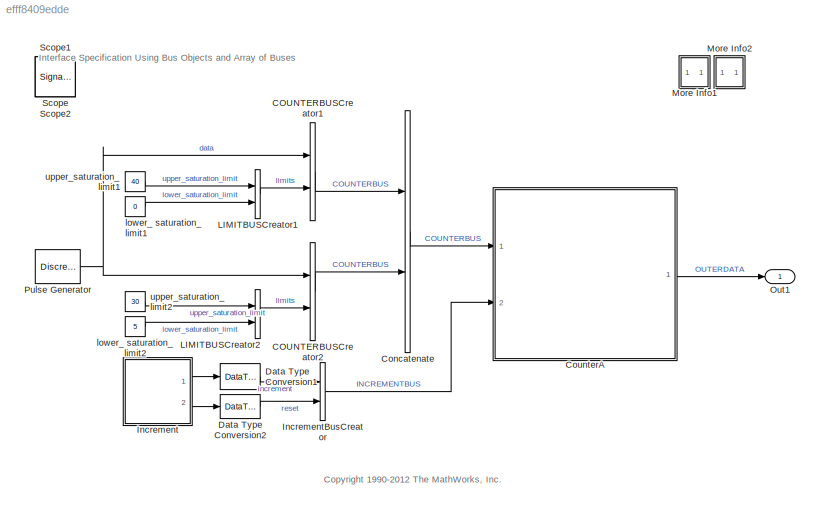
MODEL slx_efff8409edde
KIND model
CONFIG PreLoadFcn = load sldemo_mdlref_counter_bus.mat
BLOCK [BusCreator] COUNTERBUSCreator1
  DisplayOption = bar
  Inputs = 2
  NonVirtualBus = on
  OutDataTypeStr = Bus: COUNTERBUS
  Ports = [2, 1]
BLOCK [BusCreator] COUNTERBUSCreator2
  DisplayOption = bar
  Inputs = 2
  NonVirtualBus = on
  OutDataTypeStr = Bus: COUNTERBUS
  Ports = [2, 1]
BLOCK [Concatenate] Concatenate
  Mode = Multidimensional array
  Ports = [2, 1]
BLOCK [ModelReference] CounterA
  CopyOfModelName = mdlref_counter_bus_qnx.slx
  DefaultDataLogging = on
  ModelNameDialog = mdlref_counter_bus_qnx.slx
  ModelReferenceVersion = 1.259
  Ports = [2, 1]
BLOCK [DataTypeConversion] Data Type Conversion1
  OutDataTypeStr = int32
  RndMeth = Floor
  SaturateOnIntegerOverflow = off
BLOCK [DataTypeConversion] Data Type Conversion2
  OutDataTypeStr = boolean
  RndMeth = Floor
  SaturateOnIntegerOverflow = off
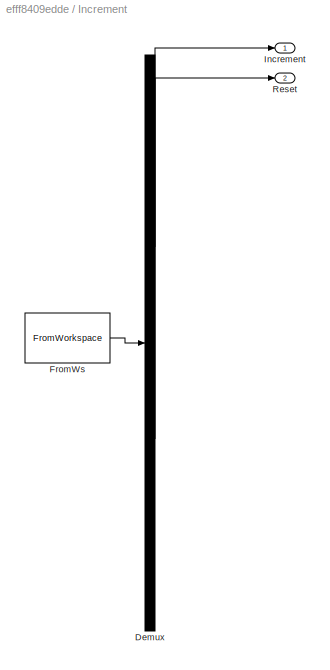
BLOCK [SubSystem] Increment
  ClipboardFcn = sigbuilder_block('clipboard');
  CloseFcn = sigbuilder_block('close');
  ContinueFcn = sigbuilder_block('continue')
  CopyFcn = sigbuilder_block('copy');
  DeleteFcn = sigbuilder_block('delete');
  FunctionWithSeparateData = off
  LoadFcn = sigbuilder_block('load');
  MaskHideContents = on
  MinAlgLoopOccurrences = off
  ModelCloseFcn = sigbuilder_block('modelClose');
  NameChangeFcn = sigbuilder_block('namechange');
  Opaque = off
  OpenFcn = sigbuilder_block('open',[3.2 253.6 1076.8 584 ]);
  PauseFcn = sigbuilder_block('pause')
  Ports = [0, 2]
  PreSaveFcn = sigbuilder_block('preSave');
  PropExecContextOutsideSubsystem = off
  RTWSystemCode = Auto
  RequestExecContextInheritance = off
  StartFcn = sigbuilder_block('start');
  StopFcn = sigbuilder_block('stop');
  Tag = STV Subsys
BLOCK [Demux] Increment/Demux
  Outputs = 2
  Ports = [1, 2]
  Tag = STV Demux
BLOCK [FromWorkspace] Increment/FromWs
  OutputAfterFinalValue = Holding final value
  SampleTime = 0.1
  Tag = STV FromWs
  VariableName = tuvar
  ZeroCross = on
BLOCK [Outport] Increment/Increment
  IconDisplay = Port number
  Tag = STV Outport
BLOCK [Outport] Increment/Reset
  IconDisplay = Port number
  Port = 2
  Tag = STV Outport
BLOCK [BusCreator] IncrementBusCreator
  DisplayOption = bar
  Inputs = 2
  NonVirtualBus = on
  OutDataTypeStr = Bus: INCREMENTBUS
  Ports = [2, 1]
BLOCK [BusCreator] LIMITBUSCreator1
  DisplayOption = bar
  Inputs = 2
  NonVirtualBus = on
  OutDataTypeStr = Bus: LIMITBUS
  Ports = [2, 1]
BLOCK [BusCreator] LIMITBUSCreator2
  DisplayOption = bar
  Inputs = 2
  NonVirtualBus = on
  OutDataTypeStr = Bus: LIMITBUS
  Ports = [2, 1]
BLOCK [SubSystem] More Info1
  FunctionWithSeparateData = off
  MaskHideContents = off
  MinAlgLoopOccurrences = off
  Opaque = off
  OpenFcn = showdemo(bdroot(gcb))
  Ports = []
  PropExecContextOutsideSubsystem = off
  RTWSystemCode = Auto
  RequestExecContextInheritance = off
BLOCK [SubSystem] More Info2
  FunctionWithSeparateData = off
  MaskHideContents = off
  MinAlgLoopOccurrences = off
  Opaque = off
  OpenFcn = html = fullfile(matlabroot, 'toolbox', 'simulink', 'simdemos', 'simfeatures', 'html', 'sldemo_mdlref_protect.html');\n                                                                                                                    \nif(isempty(dir(html)))                                                                                              \n   error('simdemos:sldemo_mdlref_bus:notFound','"...<+305ch>
  Ports = []
  PropExecContextOutsideSubsystem = off
  RTWSystemCode = Auto
  RequestExecContextInheritance = off
BLOCK [Outport] Out1
  IconDisplay = Port number
BLOCK [DiscretePulseGenerator] Pulse Generator
  Amplitude = int32(1)
  Ports = [0, 1]
  SampleTime = 0.1
BLOCK [SignalViewerScope] Scope
  IOType = viewer
  MaxDataPoints = 7500
  NumInputPorts = 1
  Ports = []
  RefreshTime = 0.035000
  ShowDataMarkers = off
  ShowLegends = on
  TickLabels = on
  TimeRange = 30
  YMax = 45
BLOCK [SignalViewerScope] Scope1
  IOType = viewer
  MaxDataPoints = 7500
  NumInputPorts = 1
  Ports = []
  RefreshTime = 0.035000
  SaveName = ScopeData1
  ShowDataMarkers = off
  ShowLegends = off
  YMax = 45
BLOCK [SignalViewerScope] Scope2
  IOType = viewer
  MaxDataPoints = 7500
  NumInputPorts = 1
  Ports = []
  RefreshTime = 0.035000
  SaveName = ScopeData2
  ShowDataMarkers = off
  ShowLegends = off
  YMax = 45
BLOCK [Constant] lower_ saturation_ limit1
  OutDataTypeStr = int32
  Value = 0
BLOCK [Constant] lower_ saturation_ limit2
  OutDataTypeStr = int32
  Value = 5
BLOCK [Constant] upper_saturation_limit1
  OutDataTypeStr = int32
  Value = 40
BLOCK [Constant] upper_saturation_limit2
  OutDataTypeStr = int32
  Value = 30
ANNOTATION (root): <copyright redacted>
ANNOTATION (root): Interface Specification Using Bus Objects and Array of Buses
ANNOTATION More Info1: Bus Block Demonstration
ANNOTATION More Info1: This demonstration shows how signals may be grouped and ungrouped while retaining their names. In this demonstration, 5 signals are created and labeled appropriately. These signals are then grouped together to create a bus of signals. This bus of signals is then fed into the Bus Selector block. Inside of the Bus Selector block, the Pulse and Chirp signals are chosen to be output from the original ...<+115ch>
ANNOTATION More Info2: Bus Block Demonstration
ANNOTATION More Info2: This demonstration shows how signals may be grouped and ungrouped while retaining their names. In this demonstration, 5 signals are created and labeled appropriately. These signals are then grouped together to create a bus of signals. This bus of signals is then fed into the Bus Selector block. Inside of the Bus Selector block, the Pulse and Chirp signals are chosen to be output from the original ...<+115ch>
LINE COUNTERBUSCreator1:1 -> Concatenate:1
LINE COUNTERBUSCreator2:1 -> Concatenate:2
LINE Concatenate:1 -> CounterA:1
LINE CounterA:1 -> Out1:1
LINE Data Type Conversion1:1 -> IncrementBusCreator:1
LINE Data Type Conversion2:1 -> IncrementBusCreator:2
LINE Increment:1 -> Data Type Conversion1:1
LINE Increment:2 -> Data Type Conversion2:1
LINE IncrementBusCreator:1 -> CounterA:2
LINE LIMITBUSCreator1:1 -> COUNTERBUSCreator1:2
LINE LIMITBUSCreator2:1 -> COUNTERBUSCreator2:2
NET Pulse Generator:1 -> COUNTERBUSCreator1:1, COUNTERBUSCreator2:1
LINE lower_ saturation_ limit1:1 -> LIMITBUSCreator1:2
LINE lower_ saturation_ limit2:1 -> LIMITBUSCreator2:2
LINE upper_saturation_limit1:1 -> LIMITBUSCreator1:1
LINE upper_saturation_limit2:1 -> LIMITBUSCreator2:1
note: NET lines group one-source signal fan-out (src -> all destinations, sorted); 1:1 wires keep LINE
